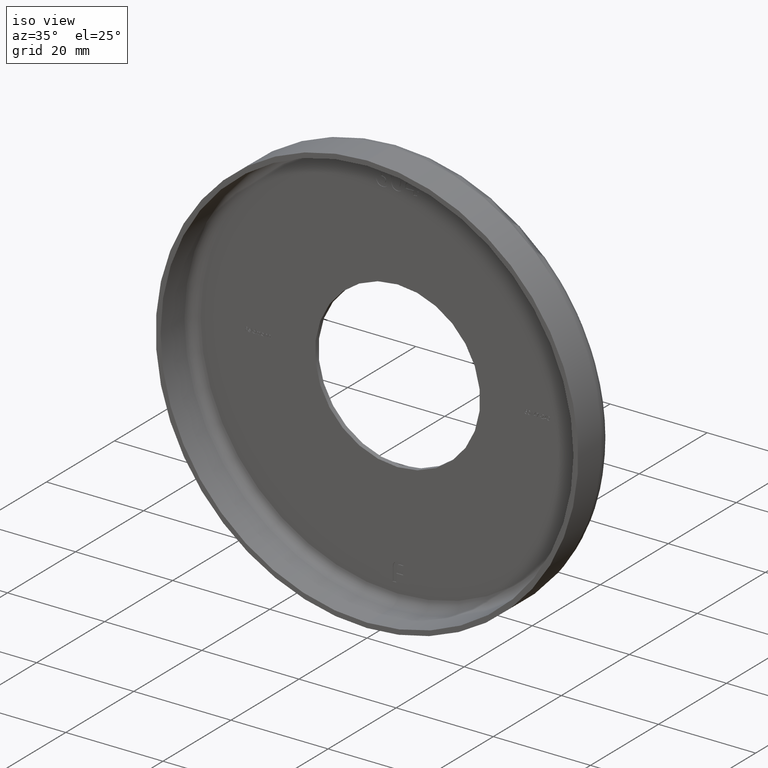
[diagram: clean part render]
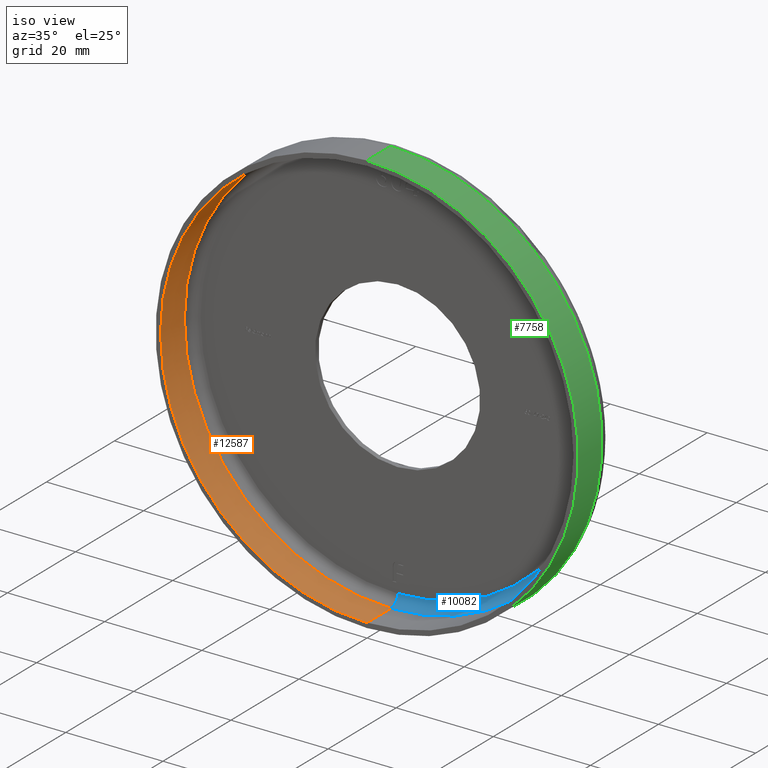
[diagram: same view with three faces highlighted in distinct colors, each labeled with its STEP entity id]
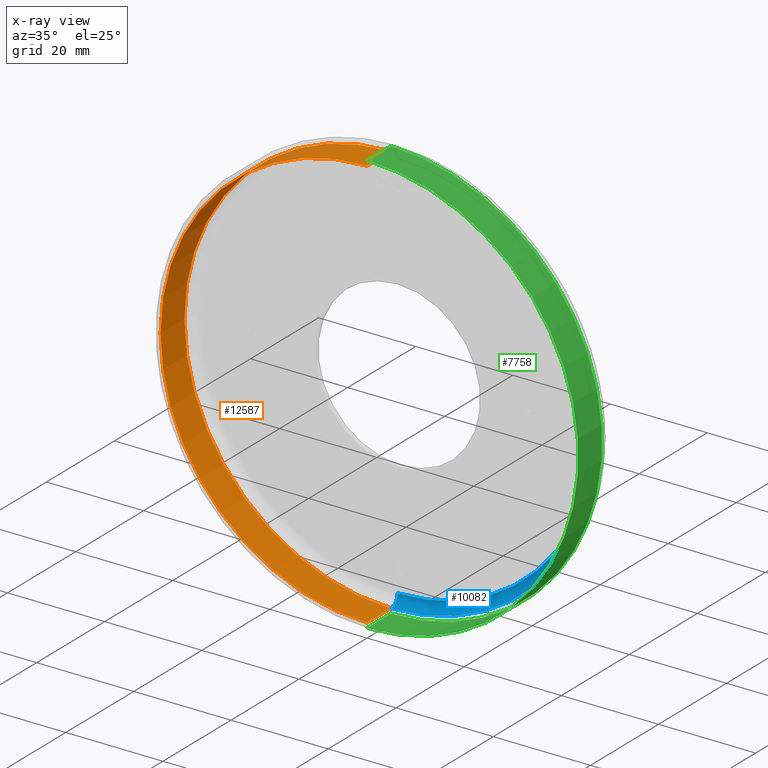
[diagram: x-ray of the same camera — body ghosted, the three highlighted faces saturated]
A machine part, iso view with three faces highlighted in distinct colors.
The next image is the same camera in x-ray (body ghosted, the three faces saturated) — at least one of them is partly hidden behind the body in this view.
Their STEP definitions:

[orange] entity #12587 — the highlighted cylindrical surface (partial cylindrical patch) has radius 42.5 mm, axis along (-0, -1, -0).
#113 = VECTOR ( 'NONE', #9055, 1000.000000000000000 ) ;
#392 = DIRECTION ( 'NONE',  ( -0.000000000000000000, -1.000000000000000000, -0.000000000000000000 ) ) ;
#547 = CARTESIAN_POINT ( 'NONE',  ( 0.000000000000000000, -1.224646799147353207E-16, -42.49999999999999289 ) ) ;
#1007 = DIRECTION ( 'NONE',  ( 0.000000000000000000, 0.000000000000000000, -1.000000000000000000 ) ) ;
#1010 = EDGE_CURVE ( 'NONE', #2839, #3099, #10671, .T. ) ;
#1034 = ORIENTED_EDGE ( 'NONE', *, *, #13208, .T. ) ;
#1807 = EDGE_LOOP ( 'NONE', ( #1969, #1034, #13650, #10312 ) ) ;
#1969 = ORIENTED_EDGE ( 'NONE', *, *, #9874, .F. ) ;
#2230 = CARTESIAN_POINT ( 'NONE',  ( 5.204748896376250107E-15, 0.000000000000000000, 42.49999999999999289 ) ) ;
#2726 = VECTOR ( 'NONE', #10301, 1000.000000000000000 ) ;
#2839 = VERTEX_POINT ( 'NONE', #13445 ) ;
#3099 = VERTEX_POINT ( 'NONE', #547 ) ;
#3272 = DIRECTION ( 'NONE',  ( -0.000000000000000000, -1.000000000000000000, -0.000000000000000000 ) ) ;
#3672 = LINE ( 'NONE', #7998, #113 ) ;
#3868 = EDGE_CURVE ( 'NONE', #9322, #3099, #3672, .T. ) ;
#4815 = CARTESIAN_POINT ( 'NONE',  ( 0.000000000000000000, 0.000000000000000000, 0.000000000000000000 ) ) ;
#4950 = AXIS2_PLACEMENT_3D ( 'NONE', #4815, #392, #8333 ) ;
#5573 = CARTESIAN_POINT ( 'NONE',  ( 0.000000000000000000, 6.999999999999999112, -42.49999999999999289 ) ) ;
#6209 = VERTEX_POINT ( 'NONE', #11856 ) ;
#6390 = AXIS2_PLACEMENT_3D ( 'NONE', #6869, #10148, #1007 ) ;
#6869 = CARTESIAN_POINT ( 'NONE',  ( 0.000000000000000000, -1.224646799147353207E-16, 0.000000000000000000 ) ) ;
#7362 = CIRCLE ( 'NONE', #10437, 42.49999999999999289 ) ;
#7814 = DIRECTION ( 'NONE',  ( 0.000000000000000000, 0.000000000000000000, -1.000000000000000000 ) ) ;
#7998 = CARTESIAN_POINT ( 'NONE',  ( 0.000000000000000000, 0.000000000000000000, -42.49999999999999289 ) ) ;
#8188 = FACE_OUTER_BOUND ( 'NONE', #1807, .T. ) ;
#8333 = DIRECTION ( 'NONE',  ( 0.000000000000000000, 0.000000000000000000, -1.000000000000000000 ) ) ;
#9055 = DIRECTION ( 'NONE',  ( -0.000000000000000000, -1.000000000000000000, -0.000000000000000000 ) ) ;
#9322 = VERTEX_POINT ( 'NONE', #5573 ) ;
#9874 = EDGE_CURVE ( 'NONE', #6209, #9322, #7362, .T. ) ;
#10148 = DIRECTION ( 'NONE',  ( -0.000000000000000000, -1.000000000000000000, -0.000000000000000000 ) ) ;
#10301 = DIRECTION ( 'NONE',  ( -0.000000000000000000, -1.000000000000000000, -0.000000000000000000 ) ) ;
#10312 = ORIENTED_EDGE ( 'NONE', *, *, #3868, .F. ) ;
#10437 = AXIS2_PLACEMENT_3D ( 'NONE', #14517, #3272, #7814 ) ;
#10671 = CIRCLE ( 'NONE', #6390, 42.49999999999999289 ) ;
#10877 = CYLINDRICAL_SURFACE ( 'NONE', #4950, 42.49999999999999289 ) ;
#10919 = LINE ( 'NONE', #2230, #2726 ) ;
#11856 = CARTESIAN_POINT ( 'NONE',  ( 5.204748896376250107E-15, 6.999999999999999112, 42.49999999999999289 ) ) ;
#12587 = ADVANCED_FACE ( 'NONE', ( #8188 ), #10877, .F. ) ;
#13208 = EDGE_CURVE ( 'NONE', #6209, #2839, #10919, .T. ) ;
#13445 = CARTESIAN_POINT ( 'NONE',  ( 5.204748896376250107E-15, -1.224646799147353207E-16, 42.49999999999999289 ) ) ;
#13650 = ORIENTED_EDGE ( 'NONE', *, *, #1010, .T. ) ;
#14517 = CARTESIAN_POINT ( 'NONE',  ( 0.000000000000000000, 6.999999999999999112, 0.000000000000000000 ) ) ;

[blue] entity #10082 — the highlighted toroidal blend (fillet) surface has major radius 40.5 mm and minor (blend) radius 2 mm.
#1423 = CARTESIAN_POINT ( 'NONE',  ( 0.000000000000000000, 6.999999999999999112, 0.000000000000000000 ) ) ;
#1795 = CIRCLE ( 'NONE', #9711, 2.000000000000001776 ) ;
#2093 = ORIENTED_EDGE ( 'NONE', *, *, #3624, .T. ) ;
#2120 = AXIS2_PLACEMENT_3D ( 'NONE', #11198, #11055, #12239 ) ;
#2186 = DIRECTION ( 'NONE',  ( -1.224646799147353454E-16, 0.000000000000000000, -1.000000000000000000 ) ) ;
#2328 = CARTESIAN_POINT ( 'NONE',  ( 4.959819536546779811E-15, 6.999999999999999112, 40.49999999999999289 ) ) ;
#3624 = EDGE_CURVE ( 'NONE', #10441, #9322, #4954, .T. ) ;
#3840 = AXIS2_PLACEMENT_3D ( 'NONE', #11536, #13860, #11692 ) ;
#4954 = CIRCLE ( 'NONE', #11255, 2.000000000000001776 ) ;
#4973 = DIRECTION ( 'NONE',  ( -0.000000000000000000, -1.000000000000000000, -0.000000000000000000 ) ) ;
#5573 = CARTESIAN_POINT ( 'NONE',  ( 0.000000000000000000, 6.999999999999999112, -42.49999999999999289 ) ) ;
#6209 = VERTEX_POINT ( 'NONE', #11856 ) ;
#6519 = CARTESIAN_POINT ( 'NONE',  ( 0.000000000000000000, 6.999999999999999112, -40.49999999999999289 ) ) ;
#7125 = ORIENTED_EDGE ( 'NONE', *, *, #13166, .F. ) ;
#7486 = EDGE_CURVE ( 'NONE', #9322, #6209, #13068, .T. ) ;
#7704 = EDGE_CURVE ( 'NONE', #10441, #10635, #10230, .T. ) ;
#7901 = ORIENTED_EDGE ( 'NONE', *, *, #7486, .T. ) ;
#8002 = DIRECTION ( 'NONE',  ( 1.000000000000000000, 0.000000000000000000, -1.224646799147353207E-16 ) ) ;
#8229 = CARTESIAN_POINT ( 'NONE',  ( 0.000000000000000000, 9.000000000000001776, -40.49999999999999289 ) ) ;
#8993 = ORIENTED_EDGE ( 'NONE', *, *, #7704, .F. ) ;
#9322 = VERTEX_POINT ( 'NONE', #5573 ) ;
#9529 = DIRECTION ( 'NONE',  ( 0.000000000000000000, 0.000000000000000000, -1.000000000000000000 ) ) ;
#9711 = AXIS2_PLACEMENT_3D ( 'NONE', #2328, #8002, #2186 ) ;
#9909 = DIRECTION ( 'NONE',  ( -1.000000000000000000, 0.000000000000000000, 0.000000000000000000 ) ) ;
#10082 = ADVANCED_FACE ( 'NONE', ( #13557 ), #13373, .F. ) ;
#10230 = CIRCLE ( 'NONE', #2120, 40.49999999999999289 ) ;
#10441 = VERTEX_POINT ( 'NONE', #8229 ) ;
#10635 = VERTEX_POINT ( 'NONE', #13841 ) ;
#11044 = DIRECTION ( 'NONE',  ( 0.000000000000000000, 0.000000000000000000, 1.000000000000000000 ) ) ;
#11055 = DIRECTION ( 'NONE',  ( -0.000000000000000000, -1.000000000000000000, -0.000000000000000000 ) ) ;
#11198 = CARTESIAN_POINT ( 'NONE',  ( 0.000000000000000000, 9.000000000000001776, 0.000000000000000000 ) ) ;
#11255 = AXIS2_PLACEMENT_3D ( 'NONE', #6519, #9909, #11044 ) ;
#11536 = CARTESIAN_POINT ( 'NONE',  ( 0.000000000000000000, 6.999999999999999112, 0.000000000000000000 ) ) ;
#11692 = DIRECTION ( 'NONE',  ( 0.000000000000000000, 0.000000000000000000, -1.000000000000000000 ) ) ;
#11848 = AXIS2_PLACEMENT_3D ( 'NONE', #1423, #4973, #9529 ) ;
#11856 = CARTESIAN_POINT ( 'NONE',  ( 5.204748896376250107E-15, 6.999999999999999112, 42.49999999999999289 ) ) ;
#12239 = DIRECTION ( 'NONE',  ( 0.000000000000000000, 0.000000000000000000, -1.000000000000000000 ) ) ;
#13043 = EDGE_LOOP ( 'NONE', ( #7125, #8993, #2093, #7901 ) ) ;
#13068 = CIRCLE ( 'NONE', #11848, 42.49999999999999289 ) ;
#13166 = EDGE_CURVE ( 'NONE', #10635, #6209, #1795, .T. ) ;
#13373 = TOROIDAL_SURFACE ( 'NONE', #3840, 40.49999999999999289, 2.000000000000001776 ) ;
#13557 = FACE_OUTER_BOUND ( 'NONE', #13043, .T. ) ;
#13841 = CARTESIAN_POINT ( 'NONE',  ( 5.082284216461514959E-15, 9.000000000000001776, 40.49999999999999289 ) ) ;
#13860 = DIRECTION ( 'NONE',  ( -0.000000000000000000, -1.000000000000000000, -0.000000000000000000 ) ) ;

[green] entity #7758 — the highlighted cylindrical surface (partial cylindrical patch) has radius 43.5 mm, axis along (-0, -1, -0).
#825 = ORIENTED_EDGE ( 'NONE', *, *, #7857, .F. ) ;
#1016 = DIRECTION ( 'NONE',  ( 0.000000000000000000, 0.000000000000000000, -1.000000000000000000 ) ) ;
#1062 = CARTESIAN_POINT ( 'NONE',  ( 0.000000000000000000, 6.999999999999999112, 0.000000000000000000 ) ) ;
#1063 = DIRECTION ( 'NONE',  ( 0.000000000000000000, 0.000000000000000000, -1.000000000000000000 ) ) ;
#1735 = VECTOR ( 'NONE', #2320, 1000.000000000000000 ) ;
#1857 = LINE ( 'NONE', #2438, #10575 ) ;
#2033 = CARTESIAN_POINT ( 'NONE',  ( 5.327213576290986044E-15, 0.000000000000000000, 43.50000000000000000 ) ) ;
#2320 = DIRECTION ( 'NONE',  ( -0.000000000000000000, -1.000000000000000000, -0.000000000000000000 ) ) ;
#2383 = CYLINDRICAL_SURFACE ( 'NONE', #10243, 43.50000000000000000 ) ;
#2413 = CIRCLE ( 'NONE', #14673, 43.50000000000000000 ) ;
#2438 = CARTESIAN_POINT ( 'NONE',  ( 0.000000000000000000, 0.000000000000000000, -43.50000000000000000 ) ) ;
#2611 = CARTESIAN_POINT ( 'NONE',  ( 0.000000000000000000, 0.000000000000000000, -43.50000000000000000 ) ) ;
#2931 = CIRCLE ( 'NONE', #3638, 43.50000000000000000 ) ;
#3333 = ORIENTED_EDGE ( 'NONE', *, *, #5751, .T. ) ;
#3638 = AXIS2_PLACEMENT_3D ( 'NONE', #10159, #7811, #1016 ) ;
#4327 = EDGE_LOOP ( 'NONE', ( #10745, #3333, #825, #13021 ) ) ;
#5751 = EDGE_CURVE ( 'NONE', #12641, #10165, #6362, .T. ) ;
#6362 = LINE ( 'NONE', #10096, #1735 ) ;
#6376 = EDGE_CURVE ( 'NONE', #7297, #12641, #2413, .T. ) ;
#6485 = FACE_OUTER_BOUND ( 'NONE', #4327, .T. ) ;
#7297 = VERTEX_POINT ( 'NONE', #13535 ) ;
#7758 = ADVANCED_FACE ( 'NONE', ( #6485 ), #2383, .T. ) ;
#7811 = DIRECTION ( 'NONE',  ( -0.000000000000000000, -1.000000000000000000, -0.000000000000000000 ) ) ;
#7857 = EDGE_CURVE ( 'NONE', #13798, #10165, #2931, .T. ) ;
#8739 = EDGE_CURVE ( 'NONE', #7297, #13798, #1857, .T. ) ;
#8914 = DIRECTION ( 'NONE',  ( -0.000000000000000000, -1.000000000000000000, -0.000000000000000000 ) ) ;
#10096 = CARTESIAN_POINT ( 'NONE',  ( 5.327213576290986044E-15, 0.000000000000000000, 43.50000000000000000 ) ) ;
#10159 = CARTESIAN_POINT ( 'NONE',  ( 0.000000000000000000, 0.000000000000000000, 0.000000000000000000 ) ) ;
#10165 = VERTEX_POINT ( 'NONE', #2033 ) ;
#10243 = AXIS2_PLACEMENT_3D ( 'NONE', #13280, #14515, #1063 ) ;
#10575 = VECTOR ( 'NONE', #11534, 1000.000000000000000 ) ;
#10745 = ORIENTED_EDGE ( 'NONE', *, *, #6376, .T. ) ;
#11151 = DIRECTION ( 'NONE',  ( 0.000000000000000000, 0.000000000000000000, -1.000000000000000000 ) ) ;
#11534 = DIRECTION ( 'NONE',  ( -0.000000000000000000, -1.000000000000000000, -0.000000000000000000 ) ) ;
#11968 = CARTESIAN_POINT ( 'NONE',  ( 5.327213576290985256E-15, 6.999999999999999112, 43.50000000000000000 ) ) ;
#12641 = VERTEX_POINT ( 'NONE', #11968 ) ;
#13021 = ORIENTED_EDGE ( 'NONE', *, *, #8739, .F. ) ;
#13280 = CARTESIAN_POINT ( 'NONE',  ( 0.000000000000000000, 0.000000000000000000, 0.000000000000000000 ) ) ;
#13535 = CARTESIAN_POINT ( 'NONE',  ( 0.000000000000000000, 6.999999999999999112, -43.50000000000000000 ) ) ;
#13798 = VERTEX_POINT ( 'NONE', #2611 ) ;
#14515 = DIRECTION ( 'NONE',  ( -0.000000000000000000, -1.000000000000000000, -0.000000000000000000 ) ) ;
#14673 = AXIS2_PLACEMENT_3D ( 'NONE', #1062, #8914, #11151 ) ;